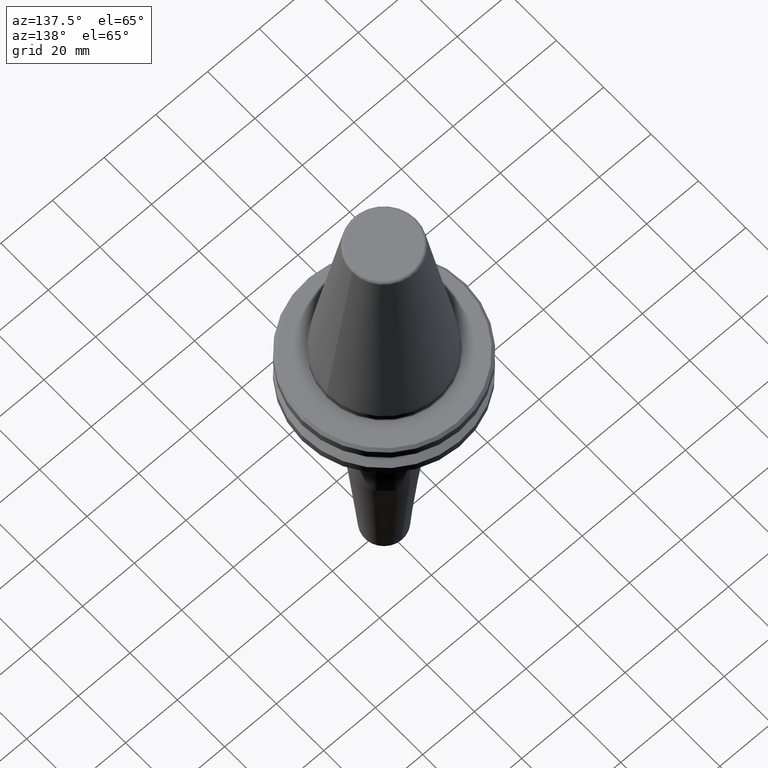
[diagram: clean part render]
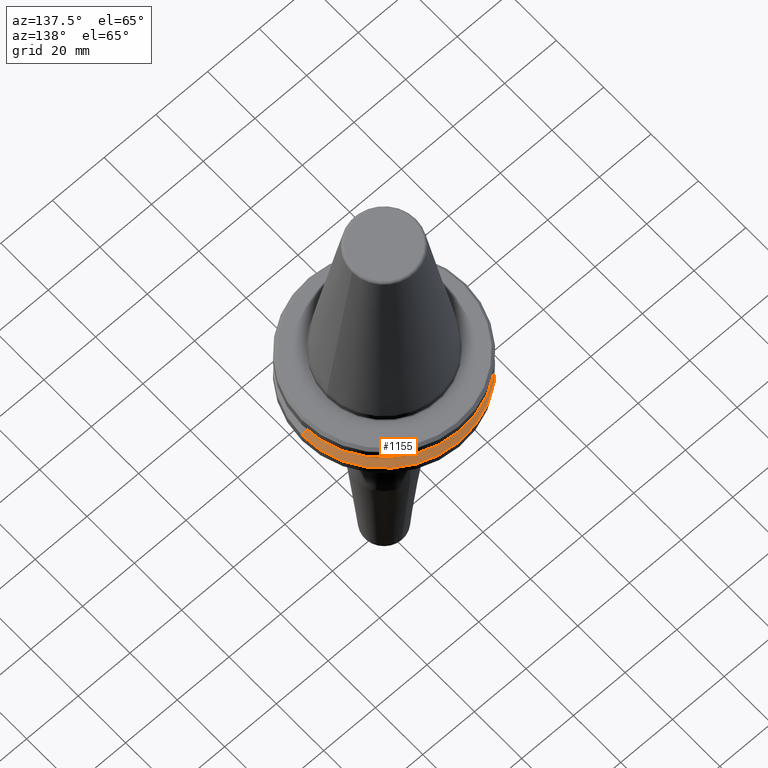
[diagram: same view with one face highlighted and labeled with its STEP entity id]
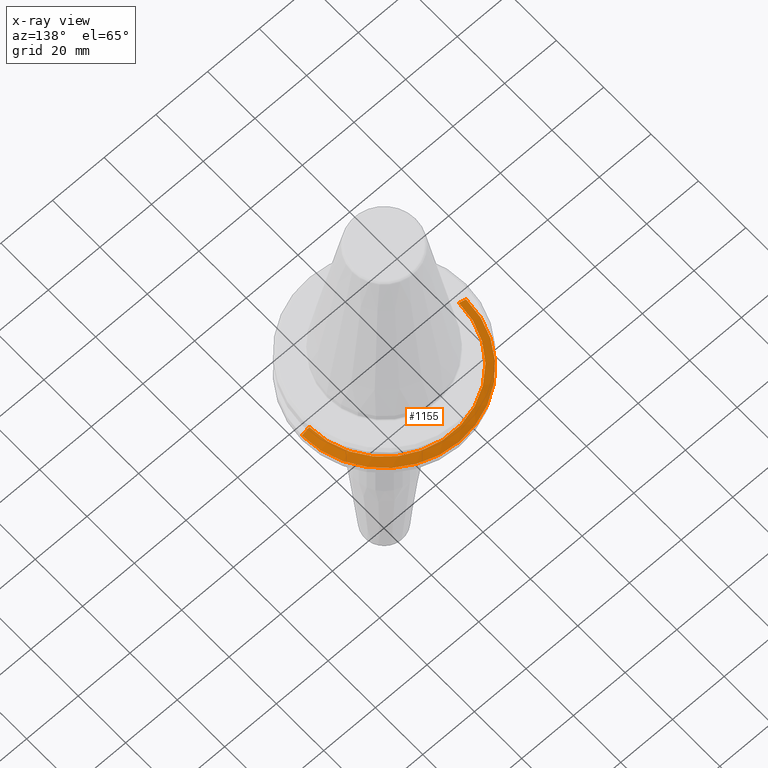
[diagram: x-ray of the same camera — body ghosted, the highlighted face saturated]
A machine part, auxiliary view. The second image highlights one B-rep face of the part: STEP entity #1155.
The next image is the same camera in x-ray: the body ghosted, the highlighted face saturated — about 0% of this face is hidden behind the body in this view.
In plain terms, the highlighted conical surface has half-angle 60 deg.
Its self-contained STEP definition (entity closure, byte-faithful):
#5 = DIRECTION ( 'NONE',  ( -1.000000000000000000, 0.0000000000000000000, 0.0000000000000000000 ) ) ;
#15 = CARTESIAN_POINT ( 'NONE',  ( -31.75000000000000000, 3.888253587292846500E-015, -14.62183664205671200 ) ) ;
#29 = AXIS2_PLACEMENT_3D ( 'NONE', #397, #98, #5 ) ;
#39 = VERTEX_POINT ( 'NONE', #969 ) ;
#49 = AXIS2_PLACEMENT_3D ( 'NONE', #394, #1256, #105 ) ;
#72 = VERTEX_POINT ( 'NONE', #981 ) ;
#73 = ORIENTED_EDGE ( 'NONE', *, *, #338, .T. ) ;
#82 = EDGE_CURVE ( 'NONE', #1219, #72, #104, .T. ) ;
#98 = DIRECTION ( 'NONE',  ( 0.0000000000000000000, 0.0000000000000000000, -1.000000000000000000 ) ) ;
#104 = CIRCLE ( 'NONE', #49, 28.94089653438085100 ) ;
#105 = DIRECTION ( 'NONE',  ( 1.000000000000000000, 0.0000000000000000000, 0.0000000000000000000 ) ) ;
#125 = VERTEX_POINT ( 'NONE', #15 ) ;
#141 = DIRECTION ( 'NONE',  ( 1.000000000000000000, 0.0000000000000000000, 0.0000000000000000000 ) ) ;
#183 = VECTOR ( 'NONE', #808, 999.9999999999998900 ) ;
#217 = LINE ( 'NONE', #228, #183 ) ;
#228 = CARTESIAN_POINT ( 'NONE',  ( -28.94089653438085100, 0.0000000000000000000, -13.00000000000001100 ) ) ;
#233 = EDGE_CURVE ( 'NONE', #72, #125, #217, .T. ) ;
#296 = ORIENTED_EDGE ( 'NONE', *, *, #82, .F. ) ;
#338 = EDGE_CURVE ( 'NONE', #39, #125, #1092, .T. ) ;
#394 = CARTESIAN_POINT ( 'NONE',  ( 0.0000000000000000000, 0.0000000000000000000, -13.00000000000001100 ) ) ;
#397 = CARTESIAN_POINT ( 'NONE',  ( 0.0000000000000000000, 0.0000000000000000000, -13.00000000000001100 ) ) ;
#410 = AXIS2_PLACEMENT_3D ( 'NONE', #446, #816, #141 ) ;
#446 = CARTESIAN_POINT ( 'NONE',  ( 0.0000000000000000000, 0.0000000000000000000, -14.62183664205671200 ) ) ;
#495 = EDGE_CURVE ( 'NONE', #1219, #39, #936, .T. ) ;
#497 = ORIENTED_EDGE ( 'NONE', *, *, #495, .T. ) ;
#529 = FACE_OUTER_BOUND ( 'NONE', #611, .T. ) ;
#611 = EDGE_LOOP ( 'NONE', ( #296, #497, #73, #1151 ) ) ;
#746 = CONICAL_SURFACE ( 'NONE', #29, 28.94089653438085100, 1.047197551196604300 ) ;
#785 = CARTESIAN_POINT ( 'NONE',  ( 28.94089653438085100, 3.544237630528423800E-015, -13.00000000000001100 ) ) ;
#808 = DIRECTION ( 'NONE',  ( -0.8660254037844420400, 0.0000000000000000000, -0.4999999999999943900 ) ) ;
#816 = DIRECTION ( 'NONE',  ( -0.0000000000000000000, -0.0000000000000000000, 1.000000000000000000 ) ) ;
#876 = DIRECTION ( 'NONE',  ( 0.8660254037844420400, 1.060575238724911000E-016, -0.4999999999999943900 ) ) ;
#936 = LINE ( 'NONE', #785, #1196 ) ;
#969 = CARTESIAN_POINT ( 'NONE',  ( 31.75000000000000000, 0.0000000000000000000, -14.62183664205671200 ) ) ;
#978 = CARTESIAN_POINT ( 'NONE',  ( 28.94089653438085100, 3.716245608910634800E-015, -13.00000000000001100 ) ) ;
#981 = CARTESIAN_POINT ( 'NONE',  ( -28.94089653438085100, 0.0000000000000000000, -13.00000000000001100 ) ) ;
#1092 = CIRCLE ( 'NONE', #410, 31.75000000000000000 ) ;
#1151 = ORIENTED_EDGE ( 'NONE', *, *, #233, .F. ) ;
#1155 = ADVANCED_FACE ( 'NONE', ( #529 ), #746, .T. ) ;
#1196 = VECTOR ( 'NONE', #876, 999.9999999999998900 ) ;
#1219 = VERTEX_POINT ( 'NONE', #978 ) ;
#1256 = DIRECTION ( 'NONE',  ( -0.0000000000000000000, -0.0000000000000000000, 1.000000000000000000 ) ) ;